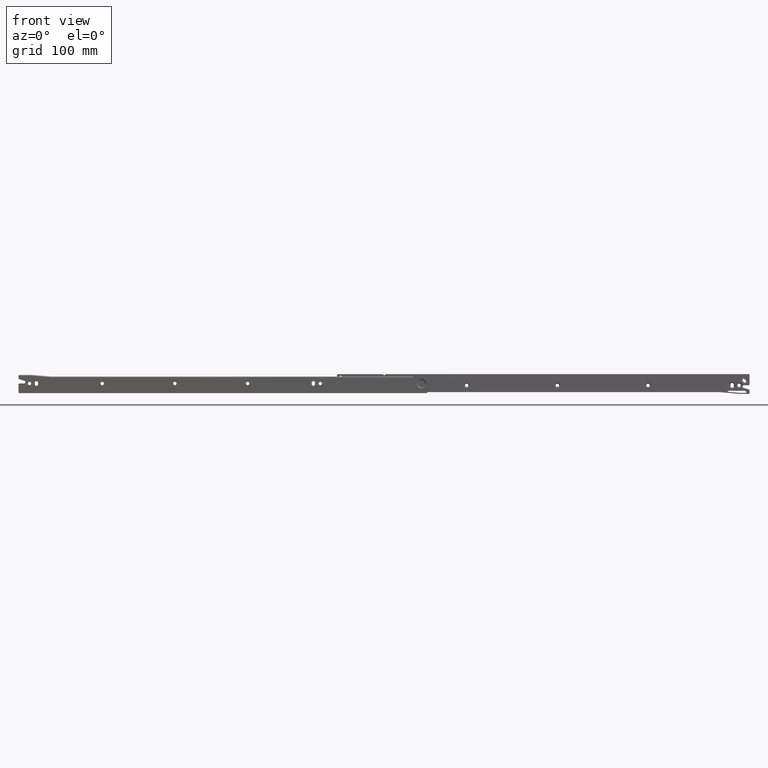
[diagram: clean part render]
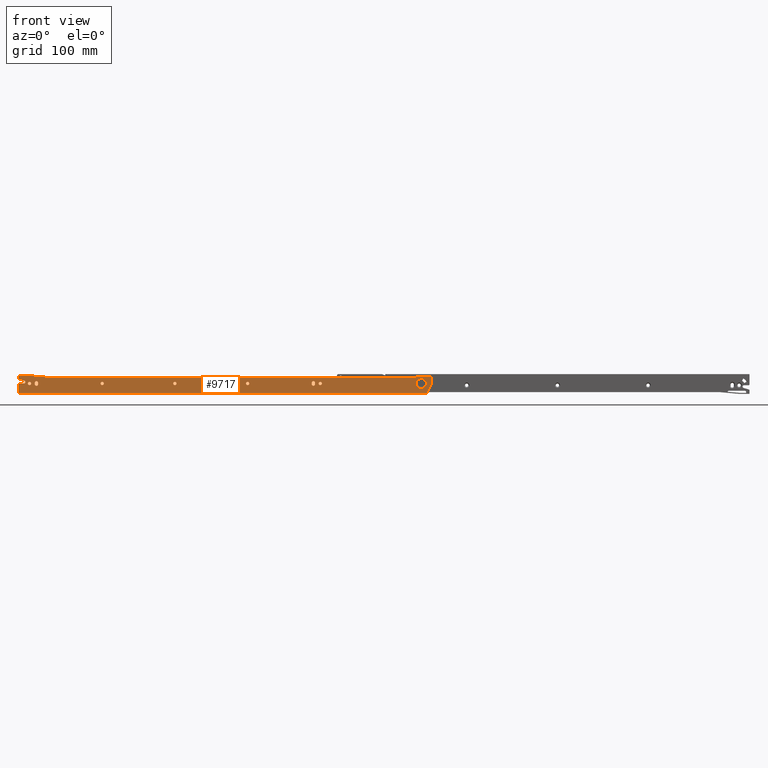
[diagram: same view with one face highlighted and labeled with its STEP entity id]
A machine part, front view. The second image highlights one B-rep face of the part: STEP entity #9717.
In plain terms, the highlighted face is a freeform B-spline surface patch.
Its self-contained STEP definition (entity closure, byte-faithful):
#5490=CARTESIAN_POINT('',(121.0,0.0,16.399999999999999));
#5491=VERTEX_POINT('',#5490);
#5492=CARTESIAN_POINT('',(118.607398397335600,5.190912E-009,14.188301867628740));
#5493=VERTEX_POINT('',#5492);
#5494=CARTESIAN_POINT('',(121.0,0.0,16.399999999999999));
#5495=CARTESIAN_POINT('',(118.781462889807600,0.0,16.400000000000006));
#5496=CARTESIAN_POINT('',(118.607398397335610,5.190912E-009,14.188301867628745));
#5504=(BOUNDED_CURVE()B_SPLINE_CURVE(2,(#5494,#5495,#5496),.UNSPECIFIED.,.F.,.U.)B_SPLINE_CURVE_WITH_KNOTS((3,3),(0.0,0.236331295256985),.UNSPECIFIED.)CURVE()GEOMETRIC_REPRESENTATION_ITEM()RATIONAL_B_SPLINE_CURVE((1.0,0.723120664903317,0.969723344952968))REPRESENTATION_ITEM(''));
#5505=EDGE_CURVE('',#5491,#5493,#5504,.T.);
#5546=CARTESIAN_POINT('',(123.392601602664400,5.190906E-009,13.811698132371260));
#5547=VERTEX_POINT('',#5546);
#5553=CARTESIAN_POINT('',(123.392601602664430,5.190906E-009,13.811698132371260));
#5554=CARTESIAN_POINT('',(123.400000000000020,0.0,13.905703705492128));
#5555=CARTESIAN_POINT('',(123.400000000000010,0.0,14.0));
#5556=CARTESIAN_POINT('',(123.400000000000010,0.0,16.400000000000002));
#5557=CARTESIAN_POINT('',(121.0,0.0,16.399999999999999));
#5565=(BOUNDED_CURVE()B_SPLINE_CURVE(2,(#5553,#5554,#5555,#5556,#5557),.UNSPECIFIED.,.F.,.U.)B_SPLINE_CURVE_WITH_KNOTS((3,2,3),(0.736331295256984,0.750000000000000,1.0),.UNSPECIFIED.)CURVE()GEOMETRIC_REPRESENTATION_ITEM()RATIONAL_B_SPLINE_CURVE((0.969723344952968,0.983986116283230,1.0,0.707106781186547,1.0))REPRESENTATION_ITEM(''));
#5566=EDGE_CURVE('',#5547,#5491,#5565,.T.);
#5589=CARTESIAN_POINT('',(121.0,0.0,11.600000000000000));
#5590=VERTEX_POINT('',#5589);
#5591=CARTESIAN_POINT('',(118.607398397335630,5.190912E-009,14.188301867628747));
#5592=CARTESIAN_POINT('',(118.600000000000020,0.0,14.094296294507872));
#5593=CARTESIAN_POINT('',(118.599999999999990,0.0,14.0));
#5594=CARTESIAN_POINT('',(118.599999999999990,0.0,11.600000000000003));
#5595=CARTESIAN_POINT('',(121.0,0.0,11.600000000000000));
#5603=(BOUNDED_CURVE()B_SPLINE_CURVE(2,(#5591,#5592,#5593,#5594,#5595),.UNSPECIFIED.,.F.,.U.)B_SPLINE_CURVE_WITH_KNOTS((3,2,3),(0.236331295256985,0.250000000000000,0.500000000000000),.UNSPECIFIED.)CURVE()GEOMETRIC_REPRESENTATION_ITEM()RATIONAL_B_SPLINE_CURVE((0.969723344952968,0.983986116283230,1.0,0.707106781186547,1.0))REPRESENTATION_ITEM(''));
#5604=EDGE_CURVE('',#5493,#5590,#5603,.T.);
#5606=CARTESIAN_POINT('',(121.0,0.0,11.600000000000000));
#5607=CARTESIAN_POINT('',(123.218537110192390,0.0,11.600000000000005));
#5608=CARTESIAN_POINT('',(123.392601602664440,5.190906E-009,13.811698132371255));
#5616=(BOUNDED_CURVE()B_SPLINE_CURVE(2,(#5606,#5607,#5608),.UNSPECIFIED.,.F.,.U.)B_SPLINE_CURVE_WITH_KNOTS((3,3),(0.500000000000000,0.736331295256984),.UNSPECIFIED.)CURVE()GEOMETRIC_REPRESENTATION_ITEM()RATIONAL_B_SPLINE_CURVE((1.0,0.723120664903318,0.969723344952967))REPRESENTATION_ITEM(''));
#5617=EDGE_CURVE('',#5590,#5547,#5616,.T.);
#5672=CARTESIAN_POINT('',(226.0,0.0,16.399999999999999));
#5673=VERTEX_POINT('',#5672);
#5674=CARTESIAN_POINT('',(223.607398397335600,5.190915E-009,14.188301867628750));
#5675=VERTEX_POINT('',#5674);
#5676=CARTESIAN_POINT('',(226.0,0.0,16.399999999999999));
#5677=CARTESIAN_POINT('',(223.781462889807560,0.0,16.400000000000009));
#5678=CARTESIAN_POINT('',(223.607398397335630,5.190915E-009,14.188301867628745));
#5686=(BOUNDED_CURVE()B_SPLINE_CURVE(2,(#5676,#5677,#5678),.UNSPECIFIED.,.F.,.U.)B_SPLINE_CURVE_WITH_KNOTS((3,3),(0.0,0.236331295256984),.UNSPECIFIED.)CURVE()GEOMETRIC_REPRESENTATION_ITEM()RATIONAL_B_SPLINE_CURVE((1.0,0.723120664903318,0.969723344952967))REPRESENTATION_ITEM(''));
#5687=EDGE_CURVE('',#5673,#5675,#5686,.T.);
#5728=CARTESIAN_POINT('',(228.392601602664400,5.190907E-009,13.811698132371260));
#5729=VERTEX_POINT('',#5728);
#5735=CARTESIAN_POINT('',(228.392601602664400,5.190907E-009,13.811698132371260));
#5736=CARTESIAN_POINT('',(228.399999999999980,0.0,13.905703705492128));
#5737=CARTESIAN_POINT('',(228.400000000000010,0.0,14.0));
#5738=CARTESIAN_POINT('',(228.399999999999950,0.0,16.400000000000002));
#5739=CARTESIAN_POINT('',(226.0,0.0,16.399999999999999));
#5747=(BOUNDED_CURVE()B_SPLINE_CURVE(2,(#5735,#5736,#5737,#5738,#5739),.UNSPECIFIED.,.F.,.U.)B_SPLINE_CURVE_WITH_KNOTS((3,2,3),(0.736331295256984,0.750000000000000,1.0),.UNSPECIFIED.)CURVE()GEOMETRIC_REPRESENTATION_ITEM()RATIONAL_B_SPLINE_CURVE((0.969723344952968,0.983986116283230,1.0,0.707106781186547,1.0))REPRESENTATION_ITEM(''));
#5748=EDGE_CURVE('',#5729,#5673,#5747,.T.);
#5771=CARTESIAN_POINT('',(226.0,0.0,11.600000000000000));
#5772=VERTEX_POINT('',#5771);
#5773=CARTESIAN_POINT('',(223.607398397335570,5.190915E-009,14.188301867628750));
#5774=CARTESIAN_POINT('',(223.600000000000050,0.0,14.094296294507874));
#5775=CARTESIAN_POINT('',(223.599999999999990,0.0,14.0));
#5776=CARTESIAN_POINT('',(223.599999999999990,0.0,11.600000000000003));
#5777=CARTESIAN_POINT('',(226.0,0.0,11.600000000000000));
#5785=(BOUNDED_CURVE()B_SPLINE_CURVE(2,(#5773,#5774,#5775,#5776,#5777),.UNSPECIFIED.,.F.,.U.)B_SPLINE_CURVE_WITH_KNOTS((3,2,3),(0.236331295256984,0.250000000000000,0.500000000000000),.UNSPECIFIED.)CURVE()GEOMETRIC_REPRESENTATION_ITEM()RATIONAL_B_SPLINE_CURVE((0.969723344952968,0.983986116283230,1.0,0.707106781186547,1.0))REPRESENTATION_ITEM(''));
#5786=EDGE_CURVE('',#5675,#5772,#5785,.T.);
#5788=CARTESIAN_POINT('',(226.0,0.0,11.600000000000000));
#5789=CARTESIAN_POINT('',(228.218537110192390,0.0,11.600000000000005));
#5790=CARTESIAN_POINT('',(228.392601602664430,5.190907E-009,13.811698132371255));
#5798=(BOUNDED_CURVE()B_SPLINE_CURVE(2,(#5788,#5789,#5790),.UNSPECIFIED.,.F.,.U.)B_SPLINE_CURVE_WITH_KNOTS((3,3),(0.500000000000000,0.736331295256984),.UNSPECIFIED.)CURVE()GEOMETRIC_REPRESENTATION_ITEM()RATIONAL_B_SPLINE_CURVE((1.0,0.723120664903318,0.969723344952967))REPRESENTATION_ITEM(''));
#5799=EDGE_CURVE('',#5772,#5729,#5798,.T.);
#5854=CARTESIAN_POINT('',(331.0,0.0,16.399999999999970));
#5855=VERTEX_POINT('',#5854);
#5856=CARTESIAN_POINT('',(328.607398397335710,5.190914E-009,14.188301867628740));
#5857=VERTEX_POINT('',#5856);
#5858=CARTESIAN_POINT('',(331.0,0.0,16.399999999999970));
#5859=CARTESIAN_POINT('',(328.781462889807640,0.0,16.399999999999974));
#5860=CARTESIAN_POINT('',(328.607398397335600,5.190914E-009,14.188301867628748));
#5868=(BOUNDED_CURVE()B_SPLINE_CURVE(2,(#5858,#5859,#5860),.UNSPECIFIED.,.F.,.U.)B_SPLINE_CURVE_WITH_KNOTS((3,3),(0.0,0.236331295256985),.UNSPECIFIED.)CURVE()GEOMETRIC_REPRESENTATION_ITEM()RATIONAL_B_SPLINE_CURVE((1.0,0.723120664903318,0.969723344952968))REPRESENTATION_ITEM(''));
#5869=EDGE_CURVE('',#5855,#5857,#5868,.T.);
#5910=CARTESIAN_POINT('',(333.392601602664400,5.190935E-009,13.811698132371250));
#5911=VERTEX_POINT('',#5910);
#5917=CARTESIAN_POINT('',(333.392601602664400,5.190935E-009,13.811698132371255));
#5918=CARTESIAN_POINT('',(333.399999999999920,0.0,13.905703705492128));
#5919=CARTESIAN_POINT('',(333.399999999999980,0.0,14.0));
#5920=CARTESIAN_POINT('',(333.400000000000090,0.0,16.399999999999970));
#5921=CARTESIAN_POINT('',(331.0,0.0,16.399999999999970));
#5929=(BOUNDED_CURVE()B_SPLINE_CURVE(2,(#5917,#5918,#5919,#5920,#5921),.UNSPECIFIED.,.F.,.U.)B_SPLINE_CURVE_WITH_KNOTS((3,2,3),(0.736331295256984,0.750000000000000,1.0),.UNSPECIFIED.)CURVE()GEOMETRIC_REPRESENTATION_ITEM()RATIONAL_B_SPLINE_CURVE((0.969723344952967,0.983986116283229,1.0,0.707106781186548,1.0))REPRESENTATION_ITEM(''));
#5930=EDGE_CURVE('',#5911,#5855,#5929,.T.);
#5953=CARTESIAN_POINT('',(331.0,0.0,11.600000000000030));
#5954=VERTEX_POINT('',#5953);
#5955=CARTESIAN_POINT('',(328.607398397335600,5.190914E-009,14.188301867628748));
#5956=CARTESIAN_POINT('',(328.600000000000080,0.0,14.094296294507872));
#5957=CARTESIAN_POINT('',(328.600000000000080,0.0,14.0));
#5958=CARTESIAN_POINT('',(328.600000000000080,0.0,11.600000000000025));
#5959=CARTESIAN_POINT('',(331.0,0.0,11.600000000000030));
#5967=(BOUNDED_CURVE()B_SPLINE_CURVE(2,(#5955,#5956,#5957,#5958,#5959),.UNSPECIFIED.,.F.,.U.)B_SPLINE_CURVE_WITH_KNOTS((3,2,3),(0.236331295256984,0.250000000000000,0.500000000000000),.UNSPECIFIED.)CURVE()GEOMETRIC_REPRESENTATION_ITEM()RATIONAL_B_SPLINE_CURVE((0.969723344952968,0.983986116283230,1.0,0.707106781186548,1.0))REPRESENTATION_ITEM(''));
#5968=EDGE_CURVE('',#5857,#5954,#5967,.T.);
#5970=CARTESIAN_POINT('',(331.0,0.0,11.600000000000030));
#5971=CARTESIAN_POINT('',(333.218537110192360,0.0,11.600000000000025));
#5972=CARTESIAN_POINT('',(333.392601602664400,5.190935E-009,13.811698132371255));
#5980=(BOUNDED_CURVE()B_SPLINE_CURVE(2,(#5970,#5971,#5972),.UNSPECIFIED.,.F.,.U.)B_SPLINE_CURVE_WITH_KNOTS((3,3),(0.500000000000000,0.736331295256984),.UNSPECIFIED.)CURVE()GEOMETRIC_REPRESENTATION_ITEM()RATIONAL_B_SPLINE_CURVE((1.0,0.723120664903318,0.969723344952967))REPRESENTATION_ITEM(''));
#5981=EDGE_CURVE('',#5954,#5911,#5980,.T.);
#6036=CARTESIAN_POINT('',(436.0,0.0,16.399999999999970));
#6037=VERTEX_POINT('',#6036);
#6038=CARTESIAN_POINT('',(433.607398397335600,5.190928E-009,14.188301867628750));
#6039=VERTEX_POINT('',#6038);
#6040=CARTESIAN_POINT('',(436.0,0.0,16.399999999999970));
#6041=CARTESIAN_POINT('',(433.781462889807640,0.0,16.399999999999974));
#6042=CARTESIAN_POINT('',(433.607398397335540,5.190928E-009,14.188301867628750));
#6050=(BOUNDED_CURVE()B_SPLINE_CURVE(2,(#6040,#6041,#6042),.UNSPECIFIED.,.F.,.U.)B_SPLINE_CURVE_WITH_KNOTS((3,3),(0.0,0.236331295256984),.UNSPECIFIED.)CURVE()GEOMETRIC_REPRESENTATION_ITEM()RATIONAL_B_SPLINE_CURVE((1.0,0.723120664903318,0.969723344952967))REPRESENTATION_ITEM(''));
#6051=EDGE_CURVE('',#6037,#6039,#6050,.T.);
#6092=CARTESIAN_POINT('',(438.392601602664400,5.190905E-009,13.811698132371260));
#6093=VERTEX_POINT('',#6092);
#6099=CARTESIAN_POINT('',(438.392601602664460,5.190905E-009,13.811698132371264));
#6100=CARTESIAN_POINT('',(438.399999999999980,0.0,13.905703705492137));
#6101=CARTESIAN_POINT('',(438.399999999999980,0.0,14.0));
#6102=CARTESIAN_POINT('',(438.400000000000090,0.0,16.399999999999970));
#6103=CARTESIAN_POINT('',(436.0,0.0,16.399999999999970));
#6111=(BOUNDED_CURVE()B_SPLINE_CURVE(2,(#6099,#6100,#6101,#6102,#6103),.UNSPECIFIED.,.F.,.U.)B_SPLINE_CURVE_WITH_KNOTS((3,2,3),(0.736331295256985,0.750000000000000,1.0),.UNSPECIFIED.)CURVE()GEOMETRIC_REPRESENTATION_ITEM()RATIONAL_B_SPLINE_CURVE((0.969723344952969,0.983986116283230,1.0,0.707106781186548,1.0))REPRESENTATION_ITEM(''));
#6112=EDGE_CURVE('',#6093,#6037,#6111,.T.);
#6135=CARTESIAN_POINT('',(436.0,0.0,11.600000000000030));
#6136=VERTEX_POINT('',#6135);
#6137=CARTESIAN_POINT('',(433.607398397335600,5.190928E-009,14.188301867628752));
#6138=CARTESIAN_POINT('',(433.600000000000020,0.0,14.094296294507872));
#6139=CARTESIAN_POINT('',(433.600000000000020,0.0,14.0));
#6140=CARTESIAN_POINT('',(433.600000000000020,0.0,11.600000000000025));
#6141=CARTESIAN_POINT('',(436.0,0.0,11.600000000000030));
#6149=(BOUNDED_CURVE()B_SPLINE_CURVE(2,(#6137,#6138,#6139,#6140,#6141),.UNSPECIFIED.,.F.,.U.)B_SPLINE_CURVE_WITH_KNOTS((3,2,3),(0.236331295256984,0.250000000000000,0.500000000000000),.UNSPECIFIED.)CURVE()GEOMETRIC_REPRESENTATION_ITEM()RATIONAL_B_SPLINE_CURVE((0.969723344952967,0.983986116283229,1.0,0.707106781186548,1.0))REPRESENTATION_ITEM(''));
#6150=EDGE_CURVE('',#6039,#6136,#6149,.T.);
#6152=CARTESIAN_POINT('',(436.0,0.0,11.600000000000030));
#6153=CARTESIAN_POINT('',(438.218537110192360,0.0,11.600000000000025));
#6154=CARTESIAN_POINT('',(438.392601602664460,5.190905E-009,13.811698132371266));
#6162=(BOUNDED_CURVE()B_SPLINE_CURVE(2,(#6152,#6153,#6154),.UNSPECIFIED.,.F.,.U.)B_SPLINE_CURVE_WITH_KNOTS((3,3),(0.500000000000000,0.736331295256984),.UNSPECIFIED.)CURVE()GEOMETRIC_REPRESENTATION_ITEM()RATIONAL_B_SPLINE_CURVE((1.0,0.723120664903318,0.969723344952967))REPRESENTATION_ITEM(''));
#6163=EDGE_CURVE('',#6136,#6093,#6162,.T.);
#6218=CARTESIAN_POINT('',(566.0,0.0,16.399999999999970));
#6219=VERTEX_POINT('',#6218);
#6220=CARTESIAN_POINT('',(563.607398397335600,5.190919E-009,14.188301867628750));
#6221=VERTEX_POINT('',#6220);
#6222=CARTESIAN_POINT('',(566.0,0.0,16.399999999999970));
#6223=CARTESIAN_POINT('',(563.781462889807470,0.0,16.399999999999977));
#6224=CARTESIAN_POINT('',(563.607398397335600,5.190919E-009,14.188301867628745));
#6232=(BOUNDED_CURVE()B_SPLINE_CURVE(2,(#6222,#6223,#6224),.UNSPECIFIED.,.F.,.U.)B_SPLINE_CURVE_WITH_KNOTS((3,3),(0.0,0.236331295256984),.UNSPECIFIED.)CURVE()GEOMETRIC_REPRESENTATION_ITEM()RATIONAL_B_SPLINE_CURVE((1.0,0.723120664903318,0.969723344952967))REPRESENTATION_ITEM(''));
#6233=EDGE_CURVE('',#6219,#6221,#6232,.T.);
#6274=CARTESIAN_POINT('',(568.392601602664290,5.190909E-009,13.811698132371260));
#6275=VERTEX_POINT('',#6274);
#6281=CARTESIAN_POINT('',(568.392601602664290,5.190909E-009,13.811698132371259));
#6282=CARTESIAN_POINT('',(568.399999999999860,0.0,13.905703705492128));
#6283=CARTESIAN_POINT('',(568.399999999999860,0.0,14.0));
#6284=CARTESIAN_POINT('',(568.399999999999860,0.0,16.399999999999970));
#6285=CARTESIAN_POINT('',(566.0,0.0,16.399999999999970));
#6293=(BOUNDED_CURVE()B_SPLINE_CURVE(2,(#6281,#6282,#6283,#6284,#6285),.UNSPECIFIED.,.F.,.U.)B_SPLINE_CURVE_WITH_KNOTS((3,2,3),(0.736331295256984,0.750000000000000,1.0),.UNSPECIFIED.)CURVE()GEOMETRIC_REPRESENTATION_ITEM()RATIONAL_B_SPLINE_CURVE((0.969723344952968,0.983986116283230,1.0,0.707106781186548,1.0))REPRESENTATION_ITEM(''));
#6294=EDGE_CURVE('',#6275,#6219,#6293,.T.);
#6317=CARTESIAN_POINT('',(566.0,0.0,11.600000000000030));
#6318=VERTEX_POINT('',#6317);
#6319=CARTESIAN_POINT('',(563.607398397335600,5.190919E-009,14.188301867628743));
#6320=CARTESIAN_POINT('',(563.600000000000020,0.0,14.094296294507876));
#6321=CARTESIAN_POINT('',(563.600000000000020,0.0,14.0));
#6322=CARTESIAN_POINT('',(563.600000000000020,0.0,11.600000000000025));
#6323=CARTESIAN_POINT('',(566.0,0.0,11.600000000000030));
#6331=(BOUNDED_CURVE()B_SPLINE_CURVE(2,(#6319,#6320,#6321,#6322,#6323),.UNSPECIFIED.,.F.,.U.)B_SPLINE_CURVE_WITH_KNOTS((3,2,3),(0.236331295256984,0.250000000000000,0.500000000000000),.UNSPECIFIED.)CURVE()GEOMETRIC_REPRESENTATION_ITEM()RATIONAL_B_SPLINE_CURVE((0.969723344952967,0.983986116283230,1.0,0.707106781186548,1.0))REPRESENTATION_ITEM(''));
#6332=EDGE_CURVE('',#6221,#6318,#6331,.T.);
#6334=CARTESIAN_POINT('',(566.0,0.0,11.600000000000030));
#6335=CARTESIAN_POINT('',(568.218537110192410,0.0,11.600000000000025));
#6336=CARTESIAN_POINT('',(568.392601602664290,5.190909E-009,13.811698132371255));
#6344=(BOUNDED_CURVE()B_SPLINE_CURVE(2,(#6334,#6335,#6336),.UNSPECIFIED.,.F.,.U.)B_SPLINE_CURVE_WITH_KNOTS((3,3),(0.500000000000000,0.736331295256984),.UNSPECIFIED.)CURVE()GEOMETRIC_REPRESENTATION_ITEM()RATIONAL_B_SPLINE_CURVE((1.0,0.723120664903318,0.969723344952967))REPRESENTATION_ITEM(''));
#6345=EDGE_CURVE('',#6318,#6275,#6344,.T.);
#6802=CARTESIAN_POINT('',(16.0,0.0,16.399999999999999));
#6803=VERTEX_POINT('',#6802);
#6804=CARTESIAN_POINT('',(13.607398397335601,5.190910E-009,14.188301867628740));
#6805=VERTEX_POINT('',#6804);
#6806=CARTESIAN_POINT('',(16.0,0.0,16.399999999999999));
#6807=CARTESIAN_POINT('',(13.781462889807603,0.0,16.400000000000006));
#6808=CARTESIAN_POINT('',(13.607398397335597,5.190910E-009,14.188301867628747));
#6816=(BOUNDED_CURVE()B_SPLINE_CURVE(2,(#6806,#6807,#6808),.UNSPECIFIED.,.F.,.U.)B_SPLINE_CURVE_WITH_KNOTS((3,3),(0.0,0.236331295256985),.UNSPECIFIED.)CURVE()GEOMETRIC_REPRESENTATION_ITEM()RATIONAL_B_SPLINE_CURVE((1.0,0.723120664903318,0.969723344952968))REPRESENTATION_ITEM(''));
#6817=EDGE_CURVE('',#6803,#6805,#6816,.T.);
#6858=CARTESIAN_POINT('',(18.392601602664399,5.190911E-009,13.811698132371260));
#6859=VERTEX_POINT('',#6858);
#6865=CARTESIAN_POINT('',(18.392601602664403,5.190911E-009,13.811698132371257));
#6866=CARTESIAN_POINT('',(18.400000000000002,0.0,13.905703705492122));
#6867=CARTESIAN_POINT('',(18.399999999999999,0.0,14.0));
#6868=CARTESIAN_POINT('',(18.399999999999995,0.0,16.400000000000002));
#6869=CARTESIAN_POINT('',(16.0,0.0,16.399999999999999));
#6877=(BOUNDED_CURVE()B_SPLINE_CURVE(2,(#6865,#6866,#6867,#6868,#6869),.UNSPECIFIED.,.F.,.U.)B_SPLINE_CURVE_WITH_KNOTS((3,2,3),(0.736331295256984,0.750000000000000,1.0),.UNSPECIFIED.)CURVE()GEOMETRIC_REPRESENTATION_ITEM()RATIONAL_B_SPLINE_CURVE((0.969723344952968,0.983986116283230,1.0,0.707106781186547,1.0))REPRESENTATION_ITEM(''));
#6878=EDGE_CURVE('',#6859,#6803,#6877,.T.);
#6901=CARTESIAN_POINT('',(16.0,0.0,11.600000000000000));
#6902=VERTEX_POINT('',#6901);
#6903=CARTESIAN_POINT('',(13.607398397335599,5.190910E-009,14.188301867628748));
#6904=CARTESIAN_POINT('',(13.600000000000005,0.0,14.094296294507872));
#6905=CARTESIAN_POINT('',(13.600000000000000,0.0,14.0));
#6906=CARTESIAN_POINT('',(13.600000000000001,0.0,11.600000000000003));
#6907=CARTESIAN_POINT('',(16.0,0.0,11.600000000000000));
#6915=(BOUNDED_CURVE()B_SPLINE_CURVE(2,(#6903,#6904,#6905,#6906,#6907),.UNSPECIFIED.,.F.,.U.)B_SPLINE_CURVE_WITH_KNOTS((3,2,3),(0.236331295256984,0.250000000000000,0.500000000000000),.UNSPECIFIED.)CURVE()GEOMETRIC_REPRESENTATION_ITEM()RATIONAL_B_SPLINE_CURVE((0.969723344952968,0.983986116283230,1.0,0.707106781186547,1.0))REPRESENTATION_ITEM(''));
#6916=EDGE_CURVE('',#6805,#6902,#6915,.T.);
#6918=CARTESIAN_POINT('',(16.0,0.0,11.600000000000000));
#6919=CARTESIAN_POINT('',(18.218537110192393,0.0,11.600000000000005));
#6920=CARTESIAN_POINT('',(18.392601602664399,5.190911E-009,13.811698132371255));
#6928=(BOUNDED_CURVE()B_SPLINE_CURVE(2,(#6918,#6919,#6920),.UNSPECIFIED.,.F.,.U.)B_SPLINE_CURVE_WITH_KNOTS((3,3),(0.500000000000000,0.736331295256984),.UNSPECIFIED.)CURVE()GEOMETRIC_REPRESENTATION_ITEM()RATIONAL_B_SPLINE_CURVE((1.0,0.723120664903318,0.969723344952967))REPRESENTATION_ITEM(''));
#6929=EDGE_CURVE('',#6902,#6859,#6928,.T.);
#7037=CARTESIAN_POINT('',(576.602319187825400,7.542216E-016,18.819307126935179));
#7038=VERTEX_POINT('',#7037);
#7052=CARTESIAN_POINT('',(582.0,0.0,6.763932022500210));
#7053=VERTEX_POINT('',#7052);
#7054=CARTESIAN_POINT('',(582.0,0.0,6.763932022500210));
#7055=CARTESIAN_POINT('',(574.763932022500280,0.0,6.763932022500212));
#7056=CARTESIAN_POINT('',(574.763932022500170,0.0,14.0));
#7057=CARTESIAN_POINT('',(574.763932022500170,0.0,16.760291869505117));
#7058=CARTESIAN_POINT('',(576.602319187825510,7.542216E-016,18.819307126935179));
#7066=(BOUNDED_CURVE()B_SPLINE_CURVE(2,(#7054,#7055,#7056,#7057,#7058),.UNSPECIFIED.,.F.,.U.)B_SPLINE_CURVE_WITH_KNOTS((3,2,3),(0.500000000000000,0.750000000000000,0.866465190524836),.UNSPECIFIED.)CURVE()GEOMETRIC_REPRESENTATION_ITEM()RATIONAL_B_SPLINE_CURVE((1.0,0.707106781186548,1.0,0.863552541869835,0.854236117401744))REPRESENTATION_ITEM(''));
#7067=EDGE_CURVE('',#7053,#7038,#7066,.T.);
#7069=CARTESIAN_POINT('',(586.163834808695580,7.251478E-016,19.918036754918528));
#7070=VERTEX_POINT('',#7069);
#7071=CARTESIAN_POINT('',(586.163834808695580,7.251478E-016,19.918036754918525));
#7072=CARTESIAN_POINT('',(589.236067977499720,0.0,17.756463290176256));
#7073=CARTESIAN_POINT('',(589.236067977499720,0.0,14.0));
#7074=CARTESIAN_POINT('',(589.236067977499830,0.0,6.763932022500212));
#7075=CARTESIAN_POINT('',(582.0,0.0,6.763932022500210));
#7083=(BOUNDED_CURVE()B_SPLINE_CURVE(2,(#7071,#7072,#7073,#7074,#7075),.UNSPECIFIED.,.F.,.U.)B_SPLINE_CURVE_WITH_KNOTS((3,2,3),(0.098941835605282,0.250000000000000,0.500000000000000),.UNSPECIFIED.)CURVE()GEOMETRIC_REPRESENTATION_ITEM()RATIONAL_B_SPLINE_CURVE((0.859917636243099,0.823024352009518,1.0,0.707106781186548,1.0))REPRESENTATION_ITEM(''));
#7084=EDGE_CURVE('',#7070,#7053,#7083,.T.);
#7135=CARTESIAN_POINT('',(582.0,0.0,21.236067977499790));
#7136=VERTEX_POINT('',#7135);
#7137=CARTESIAN_POINT('',(582.0,0.0,21.236067977499790));
#7138=CARTESIAN_POINT('',(584.290523942045980,0.0,21.236067977499786));
#7139=CARTESIAN_POINT('',(586.163834808695580,7.251478E-016,19.918036754918528));
#7147=(BOUNDED_CURVE()B_SPLINE_CURVE(2,(#7137,#7138,#7139),.UNSPECIFIED.,.F.,.U.)B_SPLINE_CURVE_WITH_KNOTS((3,3),(0.0,0.098941835605282),.UNSPECIFIED.)CURVE()GEOMETRIC_REPRESENTATION_ITEM()RATIONAL_B_SPLINE_CURVE((1.0,0.884082429177030,0.859917636243099))REPRESENTATION_ITEM(''));
#7148=EDGE_CURVE('',#7136,#7070,#7147,.T.);
#7150=CARTESIAN_POINT('',(576.602319187825510,7.542216E-016,18.819307126935179));
#7151=CARTESIAN_POINT('',(578.760118616655970,0.0,21.236067977499786));
#7152=CARTESIAN_POINT('',(582.0,0.0,21.236067977499790));
#7160=(BOUNDED_CURVE()B_SPLINE_CURVE(2,(#7150,#7151,#7152),.UNSPECIFIED.,.F.,.U.)B_SPLINE_CURVE_WITH_KNOTS((3,3),(0.866465190524837,1.0),.UNSPECIFIED.)CURVE()GEOMETRIC_REPRESENTATION_ITEM()RATIONAL_B_SPLINE_CURVE((0.854236117401744,0.843554239316713,1.0))REPRESENTATION_ITEM(''));
#7161=EDGE_CURVE('',#7038,#7136,#7160,.T.);
#7337=CARTESIAN_POINT('',(423.600000000000020,0.0,15.0));
#7338=VERTEX_POINT('',#7337);
#7344=CARTESIAN_POINT('',(423.600000000000020,0.0,12.999999999999799));
#7345=VERTEX_POINT('',#7344);
#7346=CARTESIAN_POINT('',(423.600000000000020,0.0,12.999999999999799));
#7347=CARTESIAN_POINT('',(423.600000000000020,0.0,15.0));
#7348=QUASI_UNIFORM_CURVE('',1,(#7346,#7347),.UNSPECIFIED.,.F.,.U.);
#7349=EDGE_CURVE('',#7345,#7338,#7348,.T.);
#7384=CARTESIAN_POINT('',(428.399999999999980,0.0,12.999999999999799));
#7385=VERTEX_POINT('',#7384);
#7409=CARTESIAN_POINT('',(423.600000000000020,0.0,12.999999999999799));
#7410=CARTESIAN_POINT('',(423.600000000000080,0.0,10.599999999999826));
#7411=CARTESIAN_POINT('',(426.0,0.0,10.599999999999829));
#7412=CARTESIAN_POINT('',(428.399999999999980,0.0,10.599999999999826));
#7413=CARTESIAN_POINT('',(428.399999999999920,0.0,12.999999999999799));
#7421=(BOUNDED_CURVE()B_SPLINE_CURVE(2,(#7409,#7410,#7411,#7412,#7413),.UNSPECIFIED.,.F.,.U.)B_SPLINE_CURVE_WITH_KNOTS((3,2,3),(0.0,0.500000000000000,1.0),.UNSPECIFIED.)CURVE()GEOMETRIC_REPRESENTATION_ITEM()RATIONAL_B_SPLINE_CURVE((1.0,0.707106781186548,1.0,0.707106781186548,1.0))REPRESENTATION_ITEM(''));
#7422=EDGE_CURVE('',#7345,#7385,#7421,.T.);
#7447=CARTESIAN_POINT('',(428.399999999999980,0.0,15.0));
#7448=VERTEX_POINT('',#7447);
#7454=CARTESIAN_POINT('',(428.399999999999920,0.0,15.0));
#7455=CARTESIAN_POINT('',(428.399999999999980,0.0,17.399999999999974));
#7456=CARTESIAN_POINT('',(426.0,0.0,17.399999999999970));
#7457=CARTESIAN_POINT('',(423.600000000000080,0.0,17.399999999999974));
#7458=CARTESIAN_POINT('',(423.600000000000020,0.0,15.0));
#7466=(BOUNDED_CURVE()B_SPLINE_CURVE(2,(#7454,#7455,#7456,#7457,#7458),.UNSPECIFIED.,.F.,.U.)B_SPLINE_CURVE_WITH_KNOTS((3,2,3),(0.0,0.500000000000000,1.0),.UNSPECIFIED.)CURVE()GEOMETRIC_REPRESENTATION_ITEM()RATIONAL_B_SPLINE_CURVE((1.0,0.707106781186548,1.0,0.707106781186548,1.0))REPRESENTATION_ITEM(''));
#7467=EDGE_CURVE('',#7448,#7338,#7466,.T.);
#7494=CARTESIAN_POINT('',(428.399999999999980,0.0,15.0));
#7495=CARTESIAN_POINT('',(428.399999999999980,0.0,12.999999999999799));
#7496=QUASI_UNIFORM_CURVE('',1,(#7494,#7495),.UNSPECIFIED.,.F.,.U.);
#7497=EDGE_CURVE('',#7448,#7385,#7496,.T.);
#7515=CARTESIAN_POINT('',(553.600000000000020,0.0,15.0));
#7516=VERTEX_POINT('',#7515);
#7522=CARTESIAN_POINT('',(553.600000000000020,0.0,12.999999999999799));
#7523=VERTEX_POINT('',#7522);
#7524=CARTESIAN_POINT('',(553.600000000000020,0.0,12.999999999999799));
#7525=CARTESIAN_POINT('',(553.600000000000020,0.0,15.0));
#7526=QUASI_UNIFORM_CURVE('',1,(#7524,#7525),.UNSPECIFIED.,.F.,.U.);
#7527=EDGE_CURVE('',#7523,#7516,#7526,.T.);
#7562=CARTESIAN_POINT('',(558.399999999999980,0.0,12.999999999999799));
#7563=VERTEX_POINT('',#7562);
#7587=CARTESIAN_POINT('',(553.600000000000140,0.0,12.999999999999799));
#7588=CARTESIAN_POINT('',(553.600000000000250,0.0,10.599999999999826));
#7589=CARTESIAN_POINT('',(556.0,0.0,10.599999999999829));
#7590=CARTESIAN_POINT('',(558.400000000000090,0.0,10.599999999999826));
#7591=CARTESIAN_POINT('',(558.399999999999980,0.0,12.999999999999799));
#7599=(BOUNDED_CURVE()B_SPLINE_CURVE(2,(#7587,#7588,#7589,#7590,#7591),.UNSPECIFIED.,.F.,.U.)B_SPLINE_CURVE_WITH_KNOTS((3,2,3),(0.0,0.500000000000000,1.0),.UNSPECIFIED.)CURVE()GEOMETRIC_REPRESENTATION_ITEM()RATIONAL_B_SPLINE_CURVE((1.0,0.707106781186548,1.0,0.707106781186548,1.0))REPRESENTATION_ITEM(''));
#7600=EDGE_CURVE('',#7523,#7563,#7599,.T.);
#7625=CARTESIAN_POINT('',(558.399999999999980,0.0,15.0));
#7626=VERTEX_POINT('',#7625);
#7632=CARTESIAN_POINT('',(558.399999999999980,0.0,15.0));
#7633=CARTESIAN_POINT('',(558.400000000000090,0.0,17.399999999999974));
#7634=CARTESIAN_POINT('',(556.0,0.0,17.399999999999970));
#7635=CARTESIAN_POINT('',(553.600000000000250,0.0,17.399999999999974));
#7636=CARTESIAN_POINT('',(553.600000000000140,0.0,15.0));
#7644=(BOUNDED_CURVE()B_SPLINE_CURVE(2,(#7632,#7633,#7634,#7635,#7636),.UNSPECIFIED.,.F.,.U.)B_SPLINE_CURVE_WITH_KNOTS((3,2,3),(0.0,0.500000000000000,1.0),.UNSPECIFIED.)CURVE()GEOMETRIC_REPRESENTATION_ITEM()RATIONAL_B_SPLINE_CURVE((1.0,0.707106781186548,1.0,0.707106781186548,1.0))REPRESENTATION_ITEM(''));
#7645=EDGE_CURVE('',#7626,#7516,#7644,.T.);
#7672=CARTESIAN_POINT('',(558.399999999999980,0.0,15.0));
#7673=CARTESIAN_POINT('',(558.399999999999980,0.0,12.999999999999799));
#7674=QUASI_UNIFORM_CURVE('',1,(#7672,#7673),.UNSPECIFIED.,.F.,.U.);
#7675=EDGE_CURVE('',#7626,#7563,#7674,.T.);
#8236=CARTESIAN_POINT('',(596.0,0.0,22.0));
#8237=VERTEX_POINT('',#8236);
#8238=CARTESIAN_POINT('',(594.0,0.0,24.0));
#8239=VERTEX_POINT('',#8238);
#8240=CARTESIAN_POINT('',(596.0,0.0,22.0));
#8241=CARTESIAN_POINT('',(596.0,0.0,23.999999999999996));
#8242=CARTESIAN_POINT('',(594.0,0.0,24.0));
#8250=(BOUNDED_CURVE()B_SPLINE_CURVE(2,(#8240,#8241,#8242),.UNSPECIFIED.,.F.,.U.)CURVE()GEOMETRIC_REPRESENTATION_ITEM()QUASI_UNIFORM_CURVE()RATIONAL_B_SPLINE_CURVE((1.0,0.707106781186548,1.0))REPRESENTATION_ITEM(''));
#8251=EDGE_CURVE('',#8237,#8239,#8250,.T.);
#8288=CARTESIAN_POINT('',(596.0,0.0,11.999999999999799));
#8289=VERTEX_POINT('',#8288);
#8290=CARTESIAN_POINT('',(596.0,0.0,11.999999999999799));
#8291=CARTESIAN_POINT('',(596.0,0.0,22.0));
#8292=QUASI_UNIFORM_CURVE('',1,(#8290,#8291),.UNSPECIFIED.,.F.,.U.);
#8293=EDGE_CURVE('',#8289,#8237,#8292,.T.);
#8316=CARTESIAN_POINT('',(590.552786384764090,0.0,1.105572814528704));
#8317=VERTEX_POINT('',#8316);
#8318=CARTESIAN_POINT('',(590.552786384764090,0.0,1.105572814528704));
#8319=CARTESIAN_POINT('',(596.0,0.0,11.999999999999799));
#8320=QUASI_UNIFORM_CURVE('',1,(#8318,#8319),.UNSPECIFIED.,.F.,.U.);
#8321=EDGE_CURVE('',#8317,#8289,#8320,.T.);
#8353=CARTESIAN_POINT('',(588.763931999999950,0.0,0.0));
#8354=VERTEX_POINT('',#8353);
#8355=CARTESIAN_POINT('',(588.763931999999950,0.0,0.0));
#8356=CARTESIAN_POINT('',(589.999999981770770,0.0,0.0));
#8357=CARTESIAN_POINT('',(590.552786384764200,0.0,1.105572814528671));
#8365=(BOUNDED_CURVE()B_SPLINE_CURVE(2,(#8355,#8356,#8357),.UNSPECIFIED.,.F.,.U.)CURVE()GEOMETRIC_REPRESENTATION_ITEM()QUASI_UNIFORM_CURVE()RATIONAL_B_SPLINE_CURVE((1.0,0.850650807539634,1.0))REPRESENTATION_ITEM(''));
#8366=EDGE_CURVE('',#8354,#8317,#8365,.T.);
#8397=CARTESIAN_POINT('',(572.0,0.0,22.500000000000000));
#8398=VERTEX_POINT('',#8397);
#8399=CARTESIAN_POINT('',(571.0,0.0,22.500000000000000));
#8400=VERTEX_POINT('',#8399);
#8401=CARTESIAN_POINT('',(572.0,0.0,22.500000000000000));
#8402=CARTESIAN_POINT('',(571.0,0.0,22.500000000000000));
#8403=QUASI_UNIFORM_CURVE('',1,(#8401,#8402),.UNSPECIFIED.,.F.,.U.);
#8404=EDGE_CURVE('',#8398,#8400,#8403,.T.);
#8433=CARTESIAN_POINT('',(576.0,0.0,24.0));
#8434=VERTEX_POINT('',#8433);
#8435=CARTESIAN_POINT('',(576.0,0.0,24.0));
#8436=CARTESIAN_POINT('',(572.0,0.0,22.500000000000000));
#8437=QUASI_UNIFORM_CURVE('',1,(#8435,#8436),.UNSPECIFIED.,.F.,.U.);
#8438=EDGE_CURVE('',#8434,#8398,#8437,.T.);
#8461=CARTESIAN_POINT('',(594.0,0.0,24.0));
#8462=CARTESIAN_POINT('',(576.0,0.0,24.0));
#8463=QUASI_UNIFORM_CURVE('',1,(#8461,#8462),.UNSPECIFIED.,.F.,.U.);
#8464=EDGE_CURVE('',#8239,#8434,#8463,.T.);
#8483=CARTESIAN_POINT('',(23.600000000000001,0.0,15.0));
#8484=VERTEX_POINT('',#8483);
#8490=CARTESIAN_POINT('',(23.600000000000001,0.0,12.999999999999799));
#8491=VERTEX_POINT('',#8490);
#8492=CARTESIAN_POINT('',(23.600000000000001,0.0,15.0));
#8493=CARTESIAN_POINT('',(23.600000000000001,0.0,12.999999999999799));
#8494=QUASI_UNIFORM_CURVE('',1,(#8492,#8493),.UNSPECIFIED.,.F.,.U.);
#8495=EDGE_CURVE('',#8484,#8491,#8494,.T.);
#8530=CARTESIAN_POINT('',(28.399999999999999,0.0,12.999999999999799));
#8531=VERTEX_POINT('',#8530);
#8555=CARTESIAN_POINT('',(23.600000000000001,0.0,12.999999999999799));
#8556=CARTESIAN_POINT('',(23.600000000000001,0.0,10.599999999999801));
#8557=CARTESIAN_POINT('',(26.0,0.0,10.599999999999801));
#8558=CARTESIAN_POINT('',(28.400000000000002,0.0,10.599999999999801));
#8559=CARTESIAN_POINT('',(28.399999999999999,0.0,12.999999999999799));
#8567=(BOUNDED_CURVE()B_SPLINE_CURVE(2,(#8555,#8556,#8557,#8558,#8559),.UNSPECIFIED.,.F.,.U.)B_SPLINE_CURVE_WITH_KNOTS((3,2,3),(0.0,0.500000000000000,1.0),.UNSPECIFIED.)CURVE()GEOMETRIC_REPRESENTATION_ITEM()RATIONAL_B_SPLINE_CURVE((1.0,0.707106781186547,1.0,0.707106781186547,1.0))REPRESENTATION_ITEM(''));
#8568=EDGE_CURVE('',#8491,#8531,#8567,.T.);
#8593=CARTESIAN_POINT('',(28.399999999999999,0.0,15.0));
#8594=VERTEX_POINT('',#8593);
#8600=CARTESIAN_POINT('',(28.399999999999999,0.0,15.0));
#8601=CARTESIAN_POINT('',(28.400000000000002,0.0,17.399999999999991));
#8602=CARTESIAN_POINT('',(26.0,0.0,17.399999999999999));
#8603=CARTESIAN_POINT('',(23.600000000000001,0.0,17.399999999999991));
#8604=CARTESIAN_POINT('',(23.600000000000001,0.0,15.0));
#8612=(BOUNDED_CURVE()B_SPLINE_CURVE(2,(#8600,#8601,#8602,#8603,#8604),.UNSPECIFIED.,.F.,.U.)B_SPLINE_CURVE_WITH_KNOTS((3,2,3),(0.0,0.500000000000000,1.0),.UNSPECIFIED.)CURVE()GEOMETRIC_REPRESENTATION_ITEM()RATIONAL_B_SPLINE_CURVE((1.0,0.707106781186547,1.0,0.707106781186547,1.0))REPRESENTATION_ITEM(''));
#8613=EDGE_CURVE('',#8594,#8484,#8612,.T.);
#8640=CARTESIAN_POINT('',(28.399999999999999,0.0,12.999999999999799));
#8641=CARTESIAN_POINT('',(28.399999999999999,0.0,15.0));
#8642=QUASI_UNIFORM_CURVE('',1,(#8640,#8641),.UNSPECIFIED.,.F.,.U.);
#8643=EDGE_CURVE('',#8531,#8594,#8642,.T.);
#8904=CARTESIAN_POINT('',(46.935464506606500,0.0,22.500000000000000));
#8905=VERTEX_POINT('',#8904);
#8919=CARTESIAN_POINT('',(571.0,0.0,22.500000000000000));
#8920=CARTESIAN_POINT('',(46.935464506606500,0.0,22.500000000000000));
#8921=QUASI_UNIFORM_CURVE('',1,(#8919,#8920),.UNSPECIFIED.,.F.,.U.);
#8922=EDGE_CURVE('',#8400,#8905,#8921,.T.);
#8943=CARTESIAN_POINT('',(17.935464506606550,0.0,25.0));
#8944=VERTEX_POINT('',#8943);
#8960=CARTESIAN_POINT('',(46.935464506606500,0.0,22.500000000000000));
#8961=CARTESIAN_POINT('',(17.935464506606550,0.0,25.0));
#8962=QUASI_UNIFORM_CURVE('',1,(#8960,#8961),.UNSPECIFIED.,.F.,.U.);
#8963=EDGE_CURVE('',#8905,#8944,#8962,.T.);
#8993=CARTESIAN_POINT('',(0.0,0.0,25.0));
#8994=VERTEX_POINT('',#8993);
#9010=CARTESIAN_POINT('',(17.935464506606550,0.0,25.0));
#9011=CARTESIAN_POINT('',(0.0,0.0,25.0));
#9012=QUASI_UNIFORM_CURVE('',1,(#9010,#9011),.UNSPECIFIED.,.F.,.U.);
#9013=EDGE_CURVE('',#8944,#8994,#9012,.T.);
#9101=CARTESIAN_POINT('',(-9.947598E-014,0.0,12.500000000000000));
#9102=VERTEX_POINT('',#9101);
#9103=CARTESIAN_POINT('',(0.0,0.0,2.0));
#9104=VERTEX_POINT('',#9103);
#9105=CARTESIAN_POINT('',(-9.947598E-014,0.0,12.500000000000000));
#9106=CARTESIAN_POINT('',(0.0,0.0,2.0));
#9107=QUASI_UNIFORM_CURVE('',1,(#9105,#9106),.UNSPECIFIED.,.F.,.U.);
#9108=EDGE_CURVE('',#9102,#9104,#9107,.T.);
#9146=CARTESIAN_POINT('',(1.499999999999900,0.0,14.0));
#9147=VERTEX_POINT('',#9146);
#9148=CARTESIAN_POINT('',(1.499999999999900,0.0,14.0));
#9149=CARTESIAN_POINT('',(-9.996344E-014,0.0,13.999999999999998));
#9150=CARTESIAN_POINT('',(-9.996344E-014,0.0,12.500000000000000));
#9158=(BOUNDED_CURVE()B_SPLINE_CURVE(2,(#9148,#9149,#9150),.UNSPECIFIED.,.F.,.U.)CURVE()GEOMETRIC_REPRESENTATION_ITEM()QUASI_UNIFORM_CURVE()RATIONAL_B_SPLINE_CURVE((1.0,0.707106781186548,1.0))REPRESENTATION_ITEM(''));
#9159=EDGE_CURVE('',#9147,#9102,#9158,.T.);
#9190=CARTESIAN_POINT('',(8.0,0.0,14.0));
#9191=VERTEX_POINT('',#9190);
#9192=CARTESIAN_POINT('',(8.0,0.0,14.0));
#9193=CARTESIAN_POINT('',(1.499999999999900,0.0,14.0));
#9194=QUASI_UNIFORM_CURVE('',1,(#9192,#9193),.UNSPECIFIED.,.F.,.U.);
#9195=EDGE_CURVE('',#9191,#9147,#9194,.T.);
#9231=CARTESIAN_POINT('',(8.577140990482000,0.0,17.914917302941699));
#9232=VERTEX_POINT('',#9231);
#9233=CARTESIAN_POINT('',(8.0,0.0,14.0));
#9234=CARTESIAN_POINT('',(9.726774151399797,0.0,14.000000000000005));
#9235=CARTESIAN_POINT('',(9.978614996137875,0.0,15.708310615451451));
#9236=CARTESIAN_POINT('',(10.230455840875955,0.0,17.416621230902891));
#9237=CARTESIAN_POINT('',(8.577140990481997,0.0,17.914917302941689));
#9245=(BOUNDED_CURVE()B_SPLINE_CURVE(2,(#9233,#9234,#9235,#9236,#9237),.UNSPECIFIED.,.F.,.U.)B_SPLINE_CURVE_WITH_KNOTS((3,2,3),(0.0,0.500000000000000,1.0),.UNSPECIFIED.)CURVE()GEOMETRIC_REPRESENTATION_ITEM()RATIONAL_B_SPLINE_CURVE((1.0,0.756916340249792,1.0,0.756916340249792,1.0))REPRESENTATION_ITEM(''));
#9246=EDGE_CURVE('',#9191,#9232,#9245,.T.);
#9279=CARTESIAN_POINT('',(1.067144257138398,0.0,20.178371022793751));
#9280=VERTEX_POINT('',#9279);
#9281=CARTESIAN_POINT('',(1.067144257138398,0.0,20.178371022793751));
#9282=CARTESIAN_POINT('',(8.577140990482000,0.0,17.914917302941699));
#9283=QUASI_UNIFORM_CURVE('',1,(#9281,#9282),.UNSPECIFIED.,.F.,.U.);
#9284=EDGE_CURVE('',#9280,#9232,#9283,.T.);
#9316=CARTESIAN_POINT('',(0.0,0.0,21.614559000000000));
#9317=VERTEX_POINT('',#9316);
#9318=CARTESIAN_POINT('',(0.0,0.0,21.614559000000000));
#9319=CARTESIAN_POINT('',(-9.996344E-014,0.0,20.499999895542427));
#9320=CARTESIAN_POINT('',(1.067144257138394,0.0,20.178371022793741));
#9328=(BOUNDED_CURVE()B_SPLINE_CURVE(2,(#9318,#9319,#9320),.UNSPECIFIED.,.F.,.U.)CURVE()GEOMETRIC_REPRESENTATION_ITEM()QUASI_UNIFORM_CURVE()RATIONAL_B_SPLINE_CURVE((1.0,0.802673811470452,1.0))REPRESENTATION_ITEM(''));
#9329=EDGE_CURVE('',#9317,#9280,#9328,.T.);
#9373=CARTESIAN_POINT('',(0.0,0.0,25.0));
#9374=CARTESIAN_POINT('',(0.0,0.0,21.614559000000000));
#9375=QUASI_UNIFORM_CURVE('',1,(#9373,#9374),.UNSPECIFIED.,.F.,.U.);
#9376=EDGE_CURVE('',#8994,#9317,#9375,.T.);
#9438=CARTESIAN_POINT('',(2.0,0.0,0.0));
#9439=VERTEX_POINT('',#9438);
#9440=CARTESIAN_POINT('',(2.0,0.0,0.0));
#9441=CARTESIAN_POINT('',(588.763931999999950,0.0,0.0));
#9442=QUASI_UNIFORM_CURVE('',1,(#9440,#9441),.UNSPECIFIED.,.F.,.U.);
#9443=EDGE_CURVE('',#9439,#8354,#9442,.T.);
#9475=CARTESIAN_POINT('',(0.0,0.0,2.0));
#9476=CARTESIAN_POINT('',(0.0,0.0,0.0));
#9477=CARTESIAN_POINT('',(2.0,0.0,0.0));
#9485=(BOUNDED_CURVE()B_SPLINE_CURVE(2,(#9475,#9476,#9477),.UNSPECIFIED.,.F.,.U.)CURVE()GEOMETRIC_REPRESENTATION_ITEM()QUASI_UNIFORM_CURVE()RATIONAL_B_SPLINE_CURVE((1.0,0.707106781186548,1.0))REPRESENTATION_ITEM(''));
#9486=EDGE_CURVE('',#9104,#9439,#9485,.T.);
#9631=CARTESIAN_POINT('',(-29.770198844836500,0.0,26.248749951545150));
#9632=CARTESIAN_POINT('',(625.770214830802160,0.0,26.248749951545150));
#9633=CARTESIAN_POINT('',(-29.770198844836500,0.0,-1.248750622097405));
#9634=CARTESIAN_POINT('',(625.770214830802160,0.0,-1.248750622097405));
#9635=B_SPLINE_SURFACE_WITH_KNOTS('',1,1,((#9631,#9633),(#9632,#9634)),.UNSPECIFIED.,.F.,.F.,.U.,(2,2),(2,2),(0.0,655.540413675638660),(0.0,27.497500573642551),.UNSPECIFIED.);
#9636=ORIENTED_EDGE('',*,*,#9443,.T.);
#9637=ORIENTED_EDGE('',*,*,#8366,.T.);
#9638=ORIENTED_EDGE('',*,*,#8321,.T.);
#9639=ORIENTED_EDGE('',*,*,#8293,.T.);
#9640=ORIENTED_EDGE('',*,*,#8251,.T.);
#9641=ORIENTED_EDGE('',*,*,#8464,.T.);
#9642=ORIENTED_EDGE('',*,*,#8438,.T.);
#9643=ORIENTED_EDGE('',*,*,#8404,.T.);
#9644=ORIENTED_EDGE('',*,*,#8922,.T.);
#9645=ORIENTED_EDGE('',*,*,#8963,.T.);
#9646=ORIENTED_EDGE('',*,*,#9013,.T.);
#9647=ORIENTED_EDGE('',*,*,#9376,.T.);
#9648=ORIENTED_EDGE('',*,*,#9329,.T.);
#9649=ORIENTED_EDGE('',*,*,#9284,.T.);
#9650=ORIENTED_EDGE('',*,*,#9246,.F.);
#9651=ORIENTED_EDGE('',*,*,#9195,.T.);
#9652=ORIENTED_EDGE('',*,*,#9159,.T.);
#9653=ORIENTED_EDGE('',*,*,#9108,.T.);
#9654=ORIENTED_EDGE('',*,*,#9486,.T.);
#9655=EDGE_LOOP('',(#9636,#9637,#9638,#9639,#9640,#9641,#9642,#9643,#9644,#9645,#9646,#9647,#9648,#9649,#9650,#9651,#9652,#9653,#9654));
#9656=FACE_OUTER_BOUND('',#9655,.T.);
#9657=ORIENTED_EDGE('',*,*,#7349,.T.);
#9658=ORIENTED_EDGE('',*,*,#7467,.F.);
#9659=ORIENTED_EDGE('',*,*,#7497,.T.);
#9660=ORIENTED_EDGE('',*,*,#7422,.F.);
#9661=EDGE_LOOP('',(#9657,#9658,#9659,#9660));
#9662=FACE_BOUND('',#9661,.T.);
#9663=ORIENTED_EDGE('',*,*,#8568,.F.);
#9664=ORIENTED_EDGE('',*,*,#8495,.F.);
#9665=ORIENTED_EDGE('',*,*,#8613,.F.);
#9666=ORIENTED_EDGE('',*,*,#8643,.F.);
#9667=EDGE_LOOP('',(#9663,#9664,#9665,#9666));
#9668=FACE_BOUND('',#9667,.T.);
#9669=ORIENTED_EDGE('',*,*,#7527,.T.);
#9670=ORIENTED_EDGE('',*,*,#7645,.F.);
#9671=ORIENTED_EDGE('',*,*,#7675,.T.);
#9672=ORIENTED_EDGE('',*,*,#7600,.F.);
#9673=EDGE_LOOP('',(#9669,#9670,#9671,#9672));
#9674=FACE_BOUND('',#9673,.T.);
#9675=ORIENTED_EDGE('',*,*,#7067,.T.);
#9676=ORIENTED_EDGE('',*,*,#7161,.T.);
#9677=ORIENTED_EDGE('',*,*,#7148,.T.);
#9678=ORIENTED_EDGE('',*,*,#7084,.T.);
#9679=EDGE_LOOP('',(#9675,#9676,#9677,#9678));
#9680=FACE_BOUND('',#9679,.T.);
#9681=ORIENTED_EDGE('',*,*,#6929,.F.);
#9682=ORIENTED_EDGE('',*,*,#6916,.F.);
#9683=ORIENTED_EDGE('',*,*,#6817,.F.);
#9684=ORIENTED_EDGE('',*,*,#6878,.F.);
#9685=EDGE_LOOP('',(#9681,#9682,#9683,#9684));
#9686=FACE_BOUND('',#9685,.T.);
#9687=ORIENTED_EDGE('',*,*,#6345,.F.);
#9688=ORIENTED_EDGE('',*,*,#6332,.F.);
#9689=ORIENTED_EDGE('',*,*,#6233,.F.);
#9690=ORIENTED_EDGE('',*,*,#6294,.F.);
#9691=EDGE_LOOP('',(#9687,#9688,#9689,#9690));
#9692=FACE_BOUND('',#9691,.T.);
#9693=ORIENTED_EDGE('',*,*,#6163,.F.);
#9694=ORIENTED_EDGE('',*,*,#6150,.F.);
#9695=ORIENTED_EDGE('',*,*,#6051,.F.);
#9696=ORIENTED_EDGE('',*,*,#6112,.F.);
#9697=EDGE_LOOP('',(#9693,#9694,#9695,#9696));
#9698=FACE_BOUND('',#9697,.T.);
#9699=ORIENTED_EDGE('',*,*,#5981,.F.);
#9700=ORIENTED_EDGE('',*,*,#5968,.F.);
#9701=ORIENTED_EDGE('',*,*,#5869,.F.);
#9702=ORIENTED_EDGE('',*,*,#5930,.F.);
#9703=EDGE_LOOP('',(#9699,#9700,#9701,#9702));
#9704=FACE_BOUND('',#9703,.T.);
#9705=ORIENTED_EDGE('',*,*,#5799,.F.);
#9706=ORIENTED_EDGE('',*,*,#5786,.F.);
#9707=ORIENTED_EDGE('',*,*,#5687,.F.);
#9708=ORIENTED_EDGE('',*,*,#5748,.F.);
#9709=EDGE_LOOP('',(#9705,#9706,#9707,#9708));
#9710=FACE_BOUND('',#9709,.T.);
#9711=ORIENTED_EDGE('',*,*,#5617,.F.);
#9712=ORIENTED_EDGE('',*,*,#5604,.F.);
#9713=ORIENTED_EDGE('',*,*,#5505,.F.);
#9714=ORIENTED_EDGE('',*,*,#5566,.F.);
#9715=EDGE_LOOP('',(#9711,#9712,#9713,#9714));
#9716=FACE_BOUND('',#9715,.T.);
#9717=ADVANCED_FACE('',(#9656,#9662,#9668,#9674,#9680,#9686,#9692,#9698,#9704,#9710,#9716),#9635,.F.);